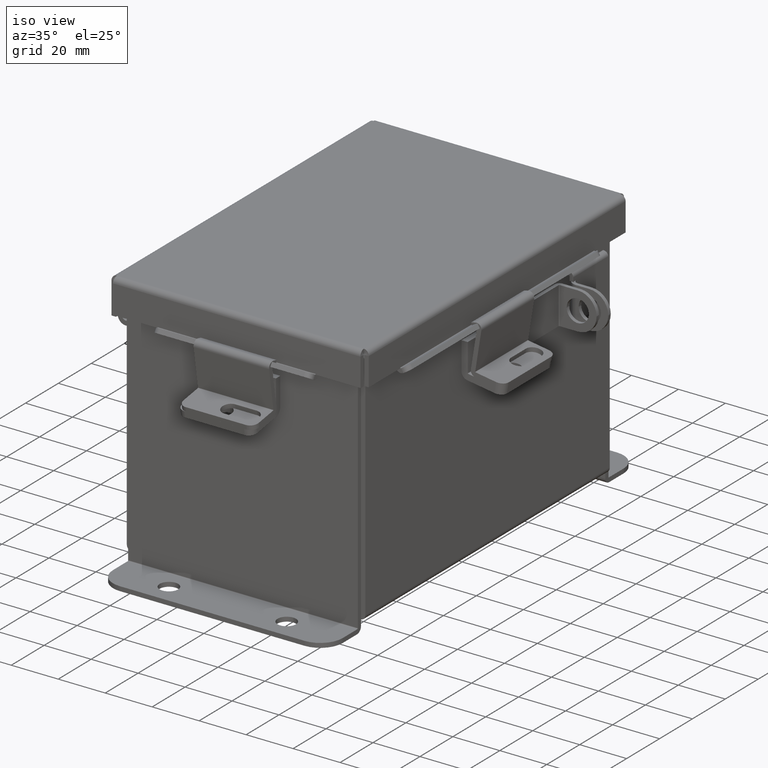
[diagram: clean part render]
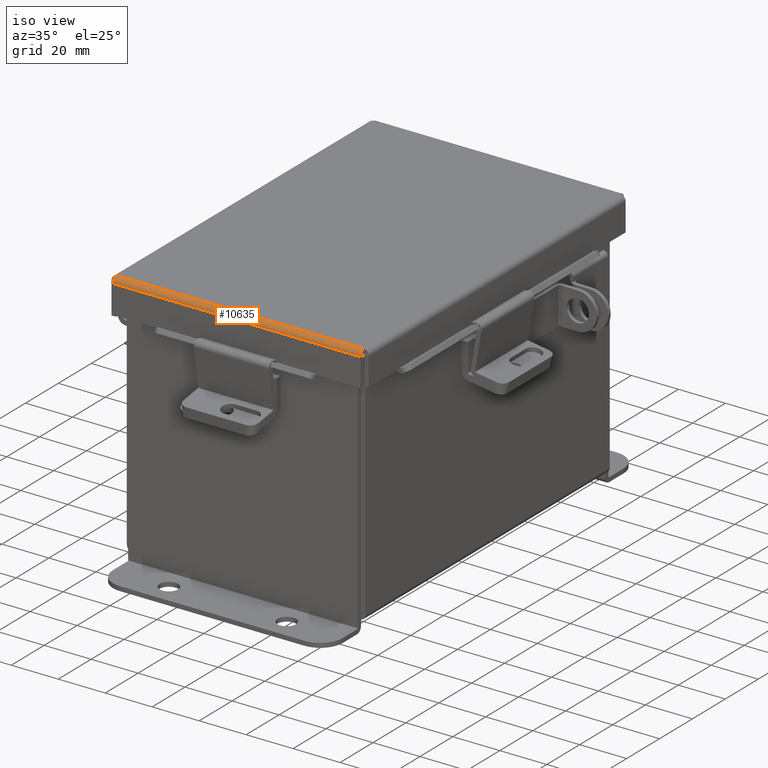
[diagram: same view with one face highlighted and labeled with its STEP entity id]
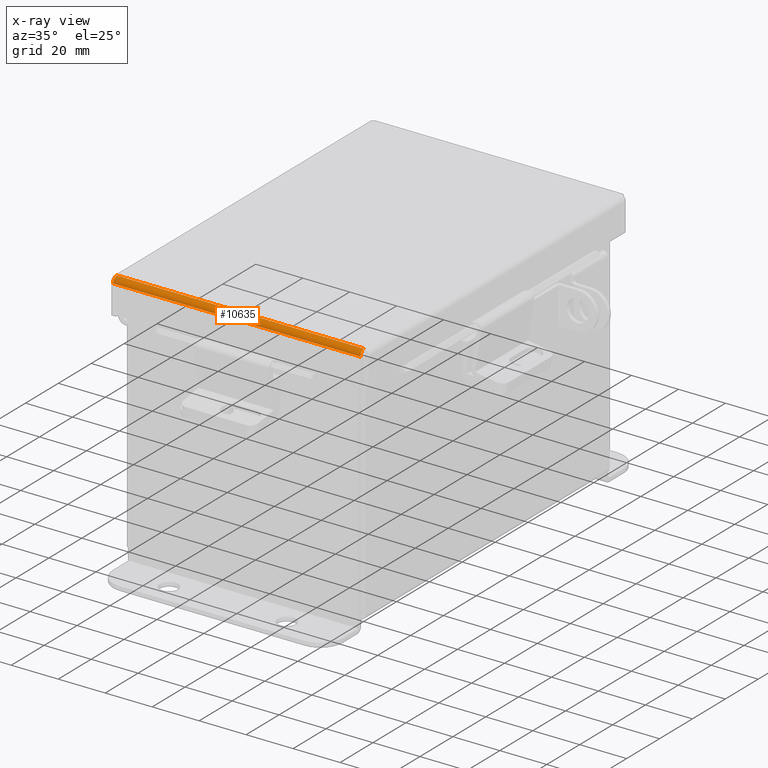
[diagram: x-ray of the same camera — body ghosted, the highlighted face saturated]
A machine part, iso view. The second image highlights one B-rep face of the part: STEP entity #10635.
The next image is the same camera in x-ray: the body ghosted, the highlighted face saturated — about 0% of this face is hidden behind the body in this view.
In plain terms, the highlighted cylindrical surface (edge-blend (fillet) strip) has radius 2.2276 mm, axis along (-1, 0, -0).
Its self-contained STEP definition (entity closure, byte-faithful):
#475 = ORIENTED_EDGE ( 'NONE', *, *, #5198, .F. ) ;
#614 = DIRECTION ( 'NONE',  ( -1.000000000000000000, 4.704520623749288300E-032, -0.0000000000000000000 ) ) ;
#715 = CYLINDRICAL_SURFACE ( 'NONE', #8563, 0.08770000000000026400 ) ;
#752 = CARTESIAN_POINT ( 'NONE',  ( 2.070526310729377900, -3.112717384578527200, -0.06363106625866792000 ) ) ;
#1433 = CARTESIAN_POINT ( 'NONE',  ( -2.068550000000001000, -3.068550000000000100, -0.07470000000000015500 ) ) ;
#1597 = CARTESIAN_POINT ( 'NONE',  ( 2.074478932188134700, -3.156250000000000000, 0.01300000000000010700 ) ) ;
#1858 = ORIENTED_EDGE ( 'NONE', *, *, #10121, .F. ) ;
#1862 = CARTESIAN_POINT ( 'NONE',  ( 2.069044077682344400, -3.080029903154991800, -0.07469999999999944700 ) ) ;
#2395 = CARTESIAN_POINT ( 'NONE',  ( -2.069538155364691000, -3.091505289458309500, -0.07241740374381074000 ) ) ;
#2695 = VECTOR ( 'NONE', #614, 39.37007874015748100 ) ;
#3203 = VERTEX_POINT ( 'NONE', #1433 ) ;
#3303 = LINE ( 'NONE', #8508, #5507 ) ;
#3515 = CARTESIAN_POINT ( 'NONE',  ( -2.071020388411723500, -3.122445747341799900, -0.05713078207831989700 ) ) ;
#3788 = CARTESIAN_POINT ( 'NONE',  ( 2.074478932188134700, -3.068549999999999700, 0.01300000000000065300 ) ) ;
#4039 = CARTESIAN_POINT ( 'NONE',  ( 2.074478932188134700, -3.156250000000000000, 0.01300000000000010700 ) ) ;
#4596 = CARTESIAN_POINT ( 'NONE',  ( -2.072502621458757400, -3.145181066258668800, -0.03116738457852745100 ) ) ;
#4648 = B_SPLINE_CURVE_WITH_KNOTS ( 'NONE', 3,
 ( #4039, #10578, #12776, #6243, #13890, #7311, #752, #8440, #1862, #9546 ),
 .UNSPECIFIED., .F., .F.,
 ( 4, 2, 2, 2, 4 ),
 ( 0.0000000000000000000, 0.2500000000000000000, 0.5000000000000000000, 0.7500000000000000000, 1.000000000000000000 ),
 .UNSPECIFIED. ) ;
#4769 = VERTEX_POINT ( 'NONE', #9374 ) ;
#5198 = EDGE_CURVE ( 'NONE', #3203, #4769, #6319, .T. ) ;
#5507 = VECTOR ( 'NONE', #13964, 39.37007874015748100 ) ;
#5651 = CARTESIAN_POINT ( 'NONE',  ( -2.068550000000001000, -3.068550000000000100, -0.07470000000000015500 ) ) ;
#5710 = CARTESIAN_POINT ( 'NONE',  ( -2.073984854505791700, -3.156250000000000000, 0.001520096845007668700 ) ) ;
#5973 = DIRECTION ( 'NONE',  ( 0.0000000000000000000, -1.000000000000000000, -3.358350761880586900E-015 ) ) ;
#6147 = VERTEX_POINT ( 'NONE', #10714 ) ;
#6243 = CARTESIAN_POINT ( 'NONE',  ( 2.072502621458757000, -3.145181066258668300, -0.03116738457852744400 ) ) ;
#6319 = B_SPLINE_CURVE_WITH_KNOTS ( 'NONE', 3,
 ( #5651, #6760, #2395, #10062, #3515, #11161, #4596, #12264, #5710, #13362 ),
 .UNSPECIFIED., .F., .F.,
 ( 4, 2, 2, 2, 4 ),
 ( 0.0000000000000000000, 0.2500000000000000000, 0.5000000000000000000, 0.7500000000000000000, 1.000000000000000000 ),
 .UNSPECIFIED. ) ;
#6571 = FACE_OUTER_BOUND ( 'NONE', #6621, .T. ) ;
#6621 = EDGE_LOOP ( 'NONE', ( #12475, #1858, #7829, #475 ) ) ;
#6760 = CARTESIAN_POINT ( 'NONE',  ( -2.069044077682345800, -3.080029903154992700, -0.07469999999999943400 ) ) ;
#7080 = DIRECTION ( 'NONE',  ( 1.000000000000000000, 2.258600338820354400E-033, 0.0000000000000000000 ) ) ;
#7311 = CARTESIAN_POINT ( 'NONE',  ( 2.071020388411722200, -3.122445747341799900, -0.05713078207831989000 ) ) ;
#7829 = ORIENTED_EDGE ( 'NONE', *, *, #13627, .T. ) ;
#8440 = CARTESIAN_POINT ( 'NONE',  ( 2.069538155364688800, -3.091505289458308200, -0.07241740374381072700 ) ) ;
#8508 = CARTESIAN_POINT ( 'NONE',  ( 2.074478932188134700, -3.068549999999999700, -0.07469999999999961400 ) ) ;
#8563 = AXIS2_PLACEMENT_3D ( 'NONE', #3788, #7080, #5973 ) ;
#8667 = EDGE_CURVE ( 'NONE', #6147, #3203, #3303, .T. ) ;
#9374 = CARTESIAN_POINT ( 'NONE',  ( -2.074478932188136100, -3.156250000000000000, 0.01300000000000010700 ) ) ;
#9546 = CARTESIAN_POINT ( 'NONE',  ( 2.068549999999999700, -3.068549999999999700, -0.07469999999999961400 ) ) ;
#10062 = CARTESIAN_POINT ( 'NONE',  ( -2.070526310729379200, -3.112717384578527600, -0.06363106625866787900 ) ) ;
#10121 = EDGE_CURVE ( 'NONE', #13537, #6147, #4648, .T. ) ;
#10578 = CARTESIAN_POINT ( 'NONE',  ( 2.073984854505790000, -3.156249999999998700, 0.001520096845007665500 ) ) ;
#10635 = ADVANCED_FACE ( 'NONE', ( #6571 ), #715, .T. ) ;
#10714 = CARTESIAN_POINT ( 'NONE',  ( 2.068549999999999700, -3.068549999999999700, -0.07469999999999961400 ) ) ;
#11161 = CARTESIAN_POINT ( 'NONE',  ( -2.072008543776414000, -3.138680782078320700, -0.04089574734179958500 ) ) ;
#12264 = CARTESIAN_POINT ( 'NONE',  ( -2.073490776823446500, -3.153967403743811000, -0.009955289458308482300 ) ) ;
#12475 = ORIENTED_EDGE ( 'NONE', *, *, #8667, .F. ) ;
#12776 = CARTESIAN_POINT ( 'NONE',  ( 2.073490776823445600, -3.153967403743811000, -0.009955289458308485800 ) ) ;
#13318 = LINE ( 'NONE', #13765, #2695 ) ;
#13362 = CARTESIAN_POINT ( 'NONE',  ( -2.074478932188136100, -3.156250000000000000, 0.01300000000000010700 ) ) ;
#13537 = VERTEX_POINT ( 'NONE', #1597 ) ;
#13627 = EDGE_CURVE ( 'NONE', #13537, #4769, #13318, .T. ) ;
#13765 = CARTESIAN_POINT ( 'NONE',  ( -2.156250000000000400, -3.156250000000000000, 0.01299999999999956100 ) ) ;
#13890 = CARTESIAN_POINT ( 'NONE',  ( 2.072008543776412200, -3.138680782078319800, -0.04089574734179957100 ) ) ;
#13964 = DIRECTION ( 'NONE',  ( -1.000000000000000000, -2.258600338820354400E-033, -0.0000000000000000000 ) ) ;